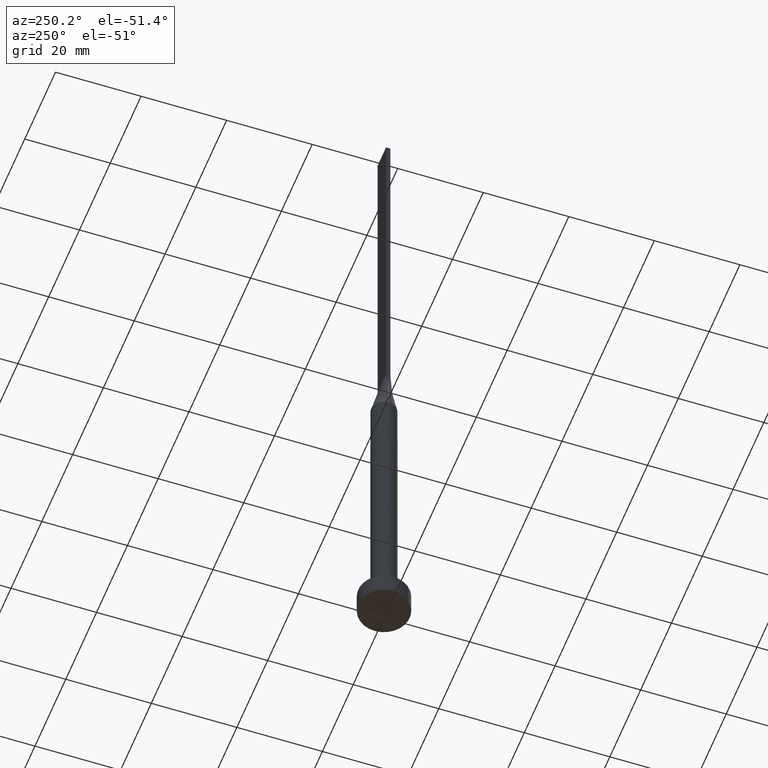
[diagram: clean part render]
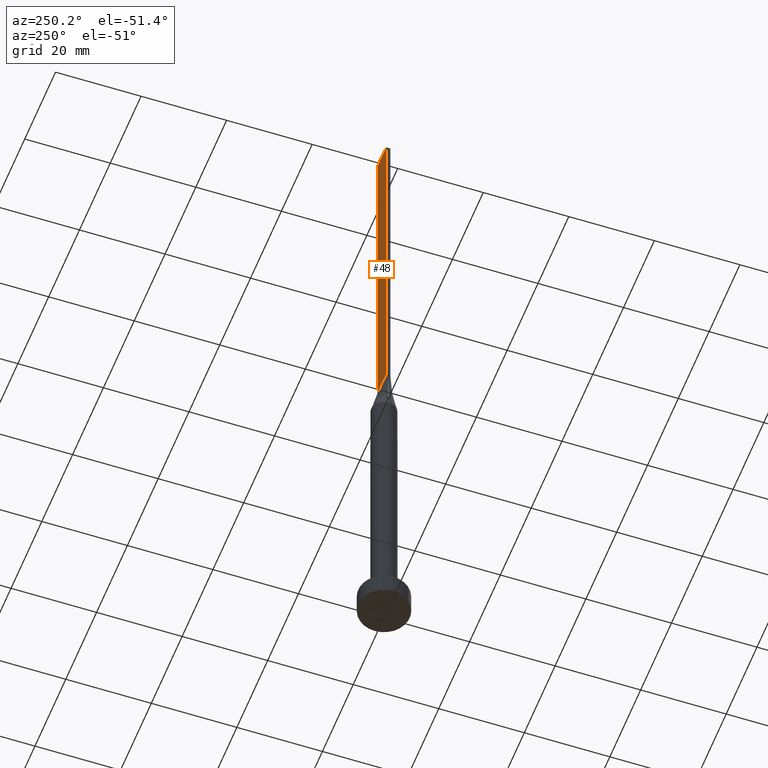
[diagram: same view with one face highlighted and labeled with its STEP entity id]
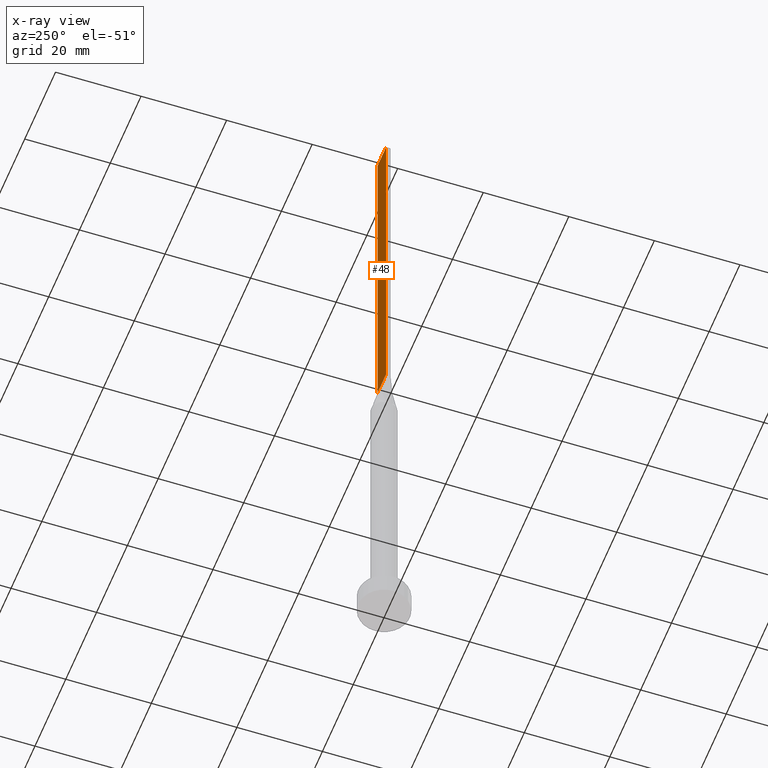
[diagram: x-ray of the same camera — body ghosted, the highlighted face saturated]
A machine part, auxiliary view. The second image highlights one B-rep face of the part: STEP entity #48.
The next image is the same camera in x-ray: the body ghosted, the highlighted face saturated — about 0% of this face is hidden behind the body in this view.
In plain terms, the highlighted planar face has unit normal (0, -1, 0).
Its self-contained STEP definition (entity closure, byte-faithful):
#5 = VECTOR ( 'NONE', #41, 1000.000000000000000 ) ;
#17 = CARTESIAN_POINT ( 'NONE',  ( -2.750000000000000000, 0.5000000000000002220, 160.0000000000000000 ) ) ;
#21 = LINE ( 'NONE', #535, #34 ) ;
#31 = CARTESIAN_POINT ( 'NONE',  ( 2.750000000000000000, 0.5000000000000002220, 160.0000000000000000 ) ) ;
#34 = VECTOR ( 'NONE', #158, 1000.000000000000000 ) ;
#41 = DIRECTION ( 'NONE',  ( -1.000000000000000000, -0.000000000000000000, -0.000000000000000000 ) ) ;
#48 = ADVANCED_FACE ( 'NONE', ( #330 ), #181, .F. ) ;
#69 = LINE ( 'NONE', #31, #106 ) ;
#96 = LINE ( 'NONE', #543, #5 ) ;
#98 = CARTESIAN_POINT ( 'NONE',  ( -2.750000000000000000, 0.5000000000000002220, 160.0000000000000000 ) ) ;
#106 = VECTOR ( 'NONE', #196, 1000.000000000000000 ) ;
#143 = CARTESIAN_POINT ( 'NONE',  ( 2.750000000000000000, 0.5000000000000002220, 160.0000000000000000 ) ) ;
#158 = DIRECTION ( 'NONE',  ( -1.000000000000000000, 0.000000000000000000, 0.000000000000000000 ) ) ;
#181 = PLANE ( 'NONE',  #232 ) ;
#186 = EDGE_CURVE ( 'NONE', #294, #421, #96, .T. ) ;
#188 = DIRECTION ( 'NONE',  ( -0.000000000000000000, -0.000000000000000000, -1.000000000000000000 ) ) ;
#196 = DIRECTION ( 'NONE',  ( -0.000000000000000000, -0.000000000000000000, -1.000000000000000000 ) ) ;
#232 = AXIS2_PLACEMENT_3D ( 'NONE', #143, #373, #499 ) ;
#246 = ORIENTED_EDGE ( 'NONE', *, *, #315, .F. ) ;
#277 = LINE ( 'NONE', #17, #529 ) ;
#294 = VERTEX_POINT ( 'NONE', #474 ) ;
#298 = EDGE_CURVE ( 'NONE', #316, #294, #69, .T. ) ;
#315 = EDGE_CURVE ( 'NONE', #316, #424, #21, .T. ) ;
#316 = VERTEX_POINT ( 'NONE', #481 ) ;
#330 = FACE_OUTER_BOUND ( 'NONE', #333, .T. ) ;
#333 = EDGE_LOOP ( 'NONE', ( #437, #449, #246, #473 ) ) ;
#373 = DIRECTION ( 'NONE',  ( 0.000000000000000000, -1.000000000000000000, 0.000000000000000000 ) ) ;
#409 = CARTESIAN_POINT ( 'NONE',  ( -2.750000000000000000, 0.5000000000000002220, 80.00000000000000000 ) ) ;
#421 = VERTEX_POINT ( 'NONE', #409 ) ;
#424 = VERTEX_POINT ( 'NONE', #98 ) ;
#437 = ORIENTED_EDGE ( 'NONE', *, *, #186, .T. ) ;
#449 = ORIENTED_EDGE ( 'NONE', *, *, #571, .F. ) ;
#473 = ORIENTED_EDGE ( 'NONE', *, *, #298, .T. ) ;
#474 = CARTESIAN_POINT ( 'NONE',  ( 2.750000000000000000, 0.5000000000000002220, 80.00000000000000000 ) ) ;
#481 = CARTESIAN_POINT ( 'NONE',  ( 2.750000000000000000, 0.5000000000000002220, 160.0000000000000000 ) ) ;
#499 = DIRECTION ( 'NONE',  ( 0.000000000000000000, -0.000000000000000000, -1.000000000000000000 ) ) ;
#529 = VECTOR ( 'NONE', #188, 1000.000000000000000 ) ;
#535 = CARTESIAN_POINT ( 'NONE',  ( 2.750000000000000000, 0.5000000000000002220, 160.0000000000000000 ) ) ;
#543 = CARTESIAN_POINT ( 'NONE',  ( -2.750000000000000000, 0.5000000000000002220, 80.00000000000000000 ) ) ;
#571 = EDGE_CURVE ( 'NONE', #424, #421, #277, .T. ) ;